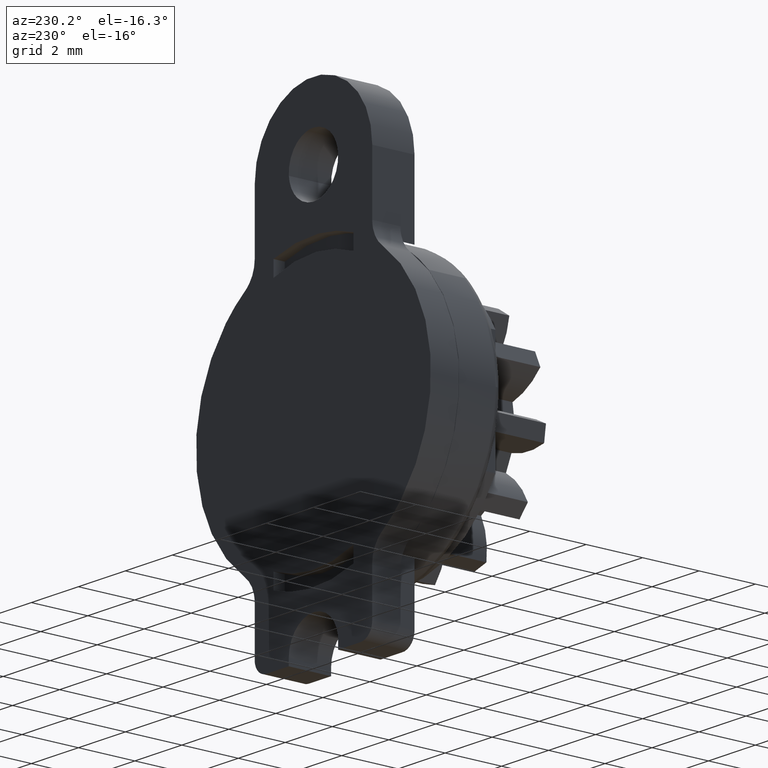
[diagram: clean part render]
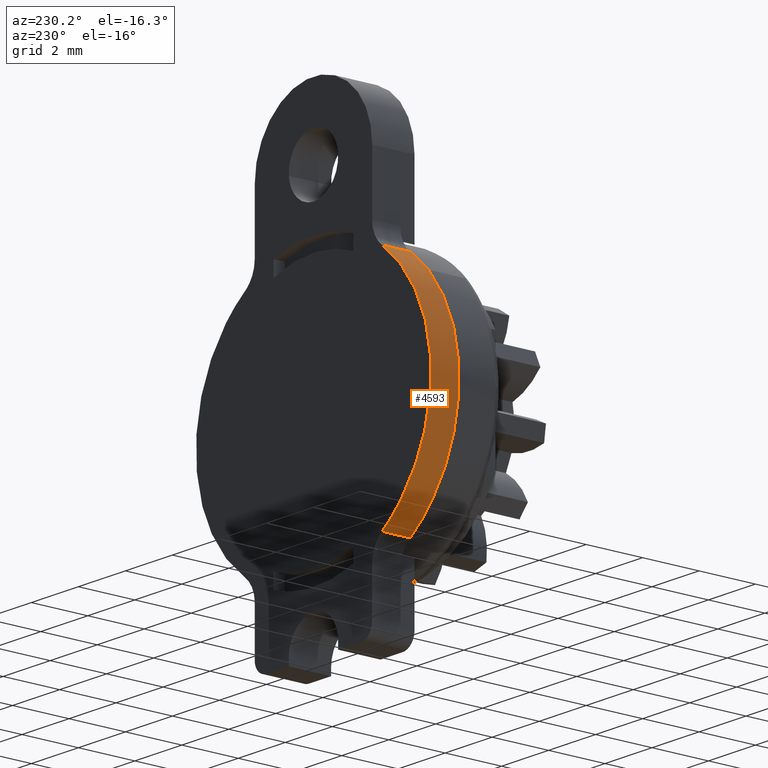
[diagram: same view with one face highlighted and labeled with its STEP entity id]
A machine part, auxiliary view. The second image highlights one B-rep face of the part: STEP entity #4593.
In plain terms, the highlighted face is a freeform B-spline surface patch.
Its self-contained STEP definition (entity closure, byte-faithful):
#4031=CARTESIAN_POINT('',(-2.916666666666660,0.0,-4.061164310337080));
#4032=VERTEX_POINT('',#4031);
#4046=CARTESIAN_POINT('',(-2.916666666666675,0.0,4.061164310337065));
#4047=VERTEX_POINT('',#4046);
#4048=CARTESIAN_POINT('',(-2.916666666666675,0.0,4.061164310337065));
#4049=CARTESIAN_POINT('',(-3.107156201456005,0.0,3.924364169707733));
#4050=CARTESIAN_POINT('',(-3.506929642643294,0.0,3.592283763738872));
#4051=CARTESIAN_POINT('',(-4.014582644645096,0.0,3.015904115456809));
#4052=CARTESIAN_POINT('',(-4.410849997879373,0.0,2.387825200197996));
#4053=CARTESIAN_POINT('',(-4.676513036186591,0.0,1.802128927928914));
#4054=CARTESIAN_POINT('',(-4.841072117540915,0.0,1.283669874310867));
#4055=CARTESIAN_POINT('',(-4.947906945672593,0.0,0.775851432167783));
#4056=CARTESIAN_POINT('',(-5.015518637341134,0.0,0.149002881401667));
#4057=CARTESIAN_POINT('',(-4.989812598986439,0.0,-0.544474410100936));
#4058=CARTESIAN_POINT('',(-4.845853441489811,0.0,-1.297647402392657));
#4059=CARTESIAN_POINT('',(-4.629487100626202,0.0,-1.930227755291385));
#4060=CARTESIAN_POINT('',(-4.362484730293726,0.0,-2.460304232392175));
#4061=CARTESIAN_POINT('',(-4.064110223495685,0.0,-2.929358878096833));
#4062=CARTESIAN_POINT('',(-3.624066846408088,0.0,-3.480339165378824));
#4063=CARTESIAN_POINT('',(-3.197419314450389,0.0,-3.859597529253199));
#4064=CARTESIAN_POINT('',(-2.916666666666660,0.0,-4.061164310337080));
#4065=B_SPLINE_CURVE_WITH_KNOTS('',3,(#4048,#4049,#4050,#4051,#4052,#4053,#4054,#4055,#4056,#4057,#4058,#4059,#4060,#4061,#4062,#4063,#4064),.UNSPECIFIED.,.F.,.U.,(4,1,1,1,1,1,1,1,1,1,1,1,1,1,4),(4.244354E-009,0.703569007289943,1.555264469781947,2.295869371831005,2.925382476279101,3.480839154629225,3.925202778530085,4.480656698260611,5.369367226548940,5.998881637838156,6.776518025200105,7.369001605408279,7.776334866211901,8.442878340993198,9.479719078071941),.UNSPECIFIED.);
#4066=EDGE_CURVE('',#4047,#4032,#4065,.T.);
#4524=CARTESIAN_POINT('',(-2.916666666666675,-1.0,4.061164310337071));
#4525=VERTEX_POINT('',#4524);
#4526=CARTESIAN_POINT('',(-2.916666666666675,-1.0,4.061164310337071));
#4527=CARTESIAN_POINT('',(-2.916666666666675,0.0,4.061164310337065));
#4528=QUASI_UNIFORM_CURVE('',1,(#4526,#4527),.UNSPECIFIED.,.F.,.U.);
#4529=EDGE_CURVE('',#4525,#4047,#4528,.T.);
#4548=CARTESIAN_POINT('',(-2.782541470120767,0.025000000000000,-4.154210269962052));
#4549=CARTESIAN_POINT('',(-2.782541470120767,-1.025625000000000,-4.154210269962052));
#4550=CARTESIAN_POINT('',(-9.303345415193563,0.025000000000000,0.213504943417809));
#4551=CARTESIAN_POINT('',(-9.303345415193563,-1.025625000000000,0.213504943417809));
#4552=CARTESIAN_POINT('',(-2.589040277330387,0.025000000000000,4.277484125319580));
#4553=CARTESIAN_POINT('',(-2.589040277330387,-1.025625000000000,4.277484125319580));
#4561=(BOUNDED_SURFACE()B_SPLINE_SURFACE(1,2,((#4548,#4550,#4552),(#4549,#4551,#4553)),.UNSPECIFIED.,.F.,.F.,.U.)B_SPLINE_SURFACE_WITH_KNOTS((2,2),(3,3),(0.0,1.0),(0.0,10.972375732533351),.UNSPECIFIED.)GEOMETRIC_REPRESENTATION_ITEM()RATIONAL_B_SPLINE_SURFACE(((1.0,0.537299608346823,1.0),(1.0,0.537299608346823,1.0)))REPRESENTATION_ITEM('')SURFACE());
#4562=CARTESIAN_POINT('',(-2.916666666666655,-1.0,-4.061164310337080));
#4563=VERTEX_POINT('',#4562);
#4564=CARTESIAN_POINT('',(-2.916666666666655,-1.0,-4.061164310337080));
#4565=CARTESIAN_POINT('',(-2.916666666666660,0.0,-4.061164310337080));
#4566=QUASI_UNIFORM_CURVE('',1,(#4564,#4565),.UNSPECIFIED.,.F.,.U.);
#4567=EDGE_CURVE('',#4563,#4032,#4566,.T.);
#4568=ORIENTED_EDGE('',*,*,#4567,.F.);
#4569=CARTESIAN_POINT('',(-2.916666666666675,-1.0,4.061164310337071));
#4570=CARTESIAN_POINT('',(-3.127216006478175,-1.000000000000001,3.909971010916412));
#4571=CARTESIAN_POINT('',(-3.505781677154085,-0.999999999999999,3.590693636978029));
#4572=CARTESIAN_POINT('',(-3.980144018947962,-1.000000000000004,3.052123329641474));
#4573=CARTESIAN_POINT('',(-4.376396227618248,-0.999999999999997,2.453957340302448));
#4574=CARTESIAN_POINT('',(-4.651002653962594,-1.000000000000005,1.871663725346567));
#4575=CARTESIAN_POINT('',(-4.834618006847901,-0.999999999999993,1.307626551212010));
#4576=CARTESIAN_POINT('',(-4.971630687943942,-1.000000000000005,0.679681245371953));
#4577=CARTESIAN_POINT('',(-5.019565261664797,-0.999999999999997,-0.000421230534776));
#4578=CARTESIAN_POINT('',(-4.965192135996318,-1.000000000000001,-0.665917184642464));
#4579=CARTESIAN_POINT('',(-4.856162509976100,-1.0,-1.236403035337953));
#4580=CARTESIAN_POINT('',(-4.700810738573869,-1.0,-1.732208240322860));
#4581=CARTESIAN_POINT('',(-4.454013059303732,-1.0,-2.298446312777844));
#4582=CARTESIAN_POINT('',(-4.141328169973369,-1.0,-2.832705795592466));
#4583=CARTESIAN_POINT('',(-3.624057357761167,-1.0,-3.480332667409959));
#4584=CARTESIAN_POINT('',(-3.197423311121119,-1.0,-3.859600828128259));
#4585=CARTESIAN_POINT('',(-2.916666666666655,-1.0,-4.061164310337080));
#4586=B_SPLINE_CURVE_WITH_KNOTS('',3,(#4569,#4570,#4571,#4572,#4573,#4574,#4575,#4576,#4577,#4578,#4579,#4580,#4581,#4582,#4583,#4584,#4585),.UNSPECIFIED.,.F.,.U.,(4,1,1,1,1,1,1,1,1,1,1,1,1,1,4),(4.250074E-009,0.777632280747598,1.481205939067181,2.147748409037389,2.925382476282680,3.406777553374074,3.925202778533155,4.850944669464013,5.443425910460100,5.924819621814791,6.591365047470139,6.998698552001928,7.776334866213048,8.442878340993849,9.479719078071909),.UNSPECIFIED.);
#4587=EDGE_CURVE('',#4525,#4563,#4586,.T.);
#4588=ORIENTED_EDGE('',*,*,#4587,.F.);
#4589=ORIENTED_EDGE('',*,*,#4529,.T.);
#4590=ORIENTED_EDGE('',*,*,#4066,.T.);
#4591=EDGE_LOOP('',(#4568,#4588,#4589,#4590));
#4592=FACE_OUTER_BOUND('',#4591,.T.);
#4593=ADVANCED_FACE('',(#4592),#4561,.T.);